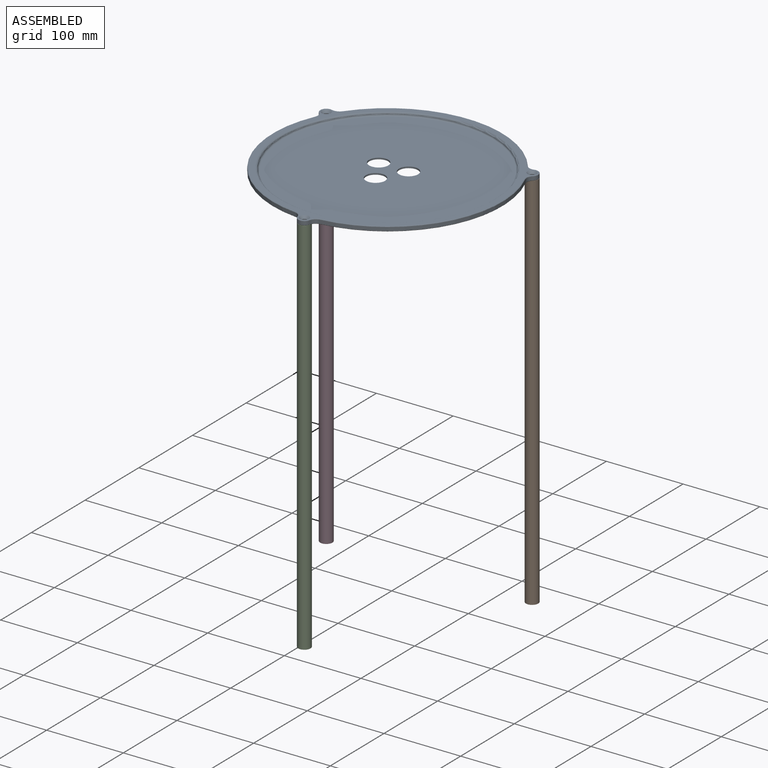
[diagram: assembled view]
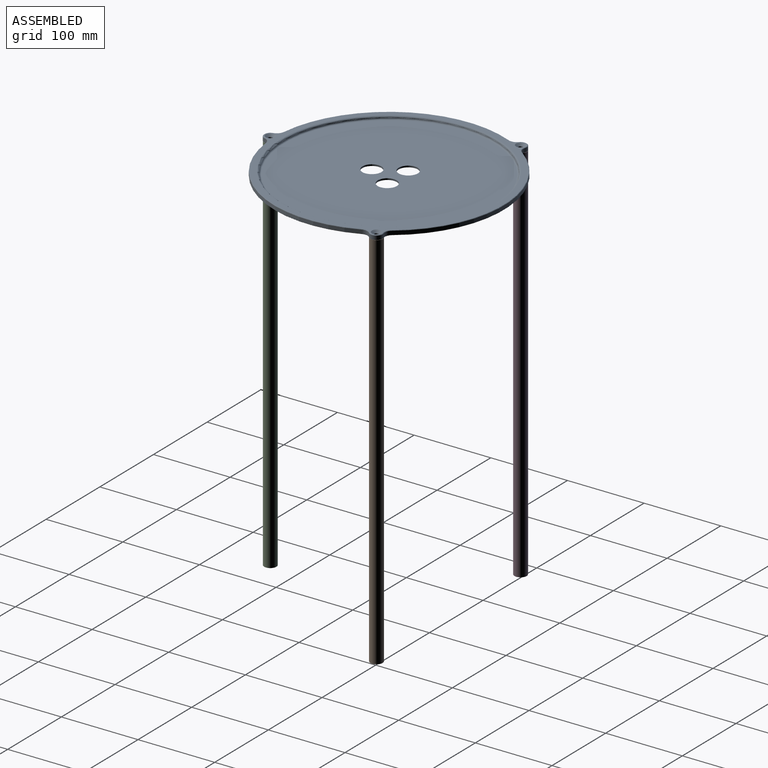
[diagram: assembled view, second angle]
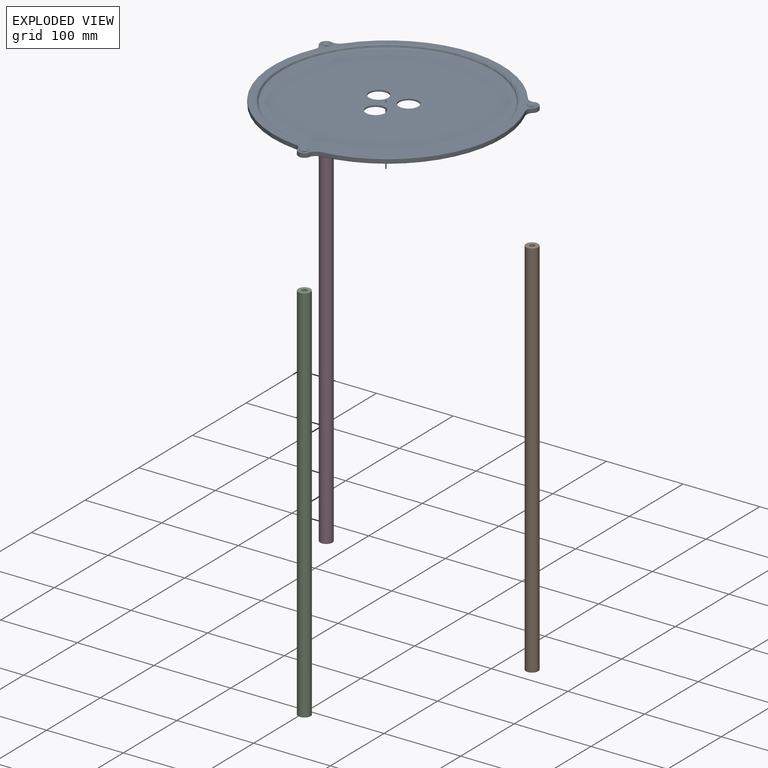
[diagram: exploded view]
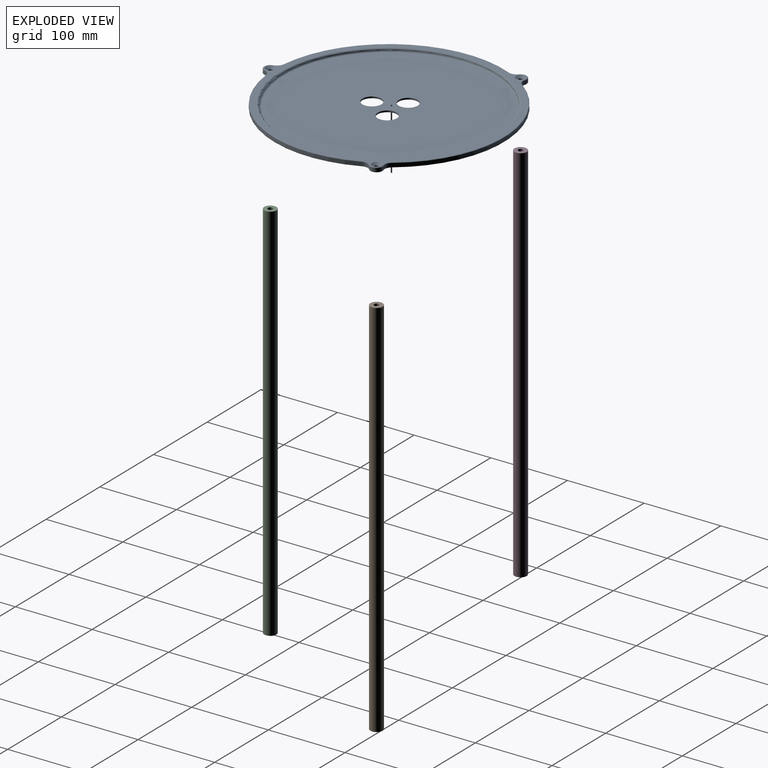
[diagram: exploded view, second angle]
ASSEMBLY  parts=4 mates=6
PART A: 50 faces, bbox 305x315.6x6 mm
  f0: cylinder r=12.5mm len=25mm, axis (0,0,-1), area 157.1mm2, adj f10,f23
  f1: cylinder r=12.5mm len=25mm, axis (0,0,-1), area 157.1mm2, adj f10,f23
  f2: cylinder r=12.5mm len=25mm, axis (0,0,-1), area 157.1mm2, adj f10,f23
  f3: cylinder r=10mm len=11.01mm, axis (0,0,-1), area 61.8mm2, adj f4,f8,f35,f39
  f4: cylinder r=8.1mm len=14.04mm, axis (0,0,-1), area 109.1mm2, adj f3,f5,f37,f41
  f5: cylinder r=10mm len=11.35mm, axis (0,0,-1), area 61.8mm2, adj f4,f6,f36,f43
  f6: cylinder r=150mm len=209.3mm, axis (0,0,-1), area 1405mm2, adj f5,f18,f34,f45
  f7: cylinder r=3.1mm len=6.2mm, axis (0,0,-1), area 58.4mm2, adj f10,f11
  f8: cylinder r=150mm len=241.68mm, axis (0,0,-1), area 1405mm2, adj f3,f14,f33,f38
  f9: plane 312.1x299mm, normal (0,0,1), area 8115.2mm2, adj f11,f17,f22,f25,f38,f39,f40,f41
  f10: plane 312.1x299mm, normal (0,0,-1), area 69272.2mm2, adj f0,f1,f2,f7,f15,f21,f26,f27
  f11: cone r=3.1mm half-angle=45deg, axis (0,0,1), area 122.6mm2, adj f7,f9
  f12: cylinder r=10mm len=11.35mm, axis (0,0,-1), area 61.8mm2, adj f13,f16,f27,f44
  f13: cylinder r=8.1mm len=14.04mm, axis (0,0,-1), area 109.1mm2, adj f12,f14,f29,f42
  f14: cylinder r=10mm len=11.01mm, axis (0,0,-1), area 61.8mm2, adj f8,f13,f31,f40
  f15: cylinder r=3.1mm len=6.2mm, axis (0,0,-1), area 58.4mm2, adj f10,f17
  f16: cylinder r=150mm len=209.3mm, axis (0,0,-1), area 1405mm2, adj f12,f20,f26,f46
  f17: cone r=3.1mm half-angle=45deg, axis (0,0,1), area 122.6mm2, adj f9,f15
  f18: cylinder r=10mm len=8.65mm, axis (0,0,-1), area 61.8mm2, adj f6,f19,f32,f47
  f19: cylinder r=8.1mm len=15.79mm, axis (0,0,-1), area 109.1mm2, adj f18,f20,f30,f49
  f20: cylinder r=10mm len=8.65mm, axis (0,0,-1), area 61.8mm2, adj f16,f19,f28,f48
  f21: cylinder r=3.1mm len=6.2mm, axis (0,0,-1), area 58.4mm2, adj f10,f22
  f22: cone r=3.1mm half-angle=45deg, axis (0,0,1), area 122.6mm2, adj f9,f21
  f23: plane 273.8x273.8mm, normal (0,0,1), area 57405.9mm2, adj f0,f1,f2,f24
  f24: torus R=136.9mm, axis (0,0,1), area 2727.4mm2, adj f23,f25
  f25: torus R=140.9mm, axis (0,0,1), area 2756.1mm2, adj f9,f24
  f26: cone r=150mm half-angle=45deg, axis (0,0,1), area 198.4mm2, adj f10,f16,f27,f28
  f27: cone r=10.5mm half-angle=45deg, axis (0,0,-1), area 9mm2, adj f10,f12,f26,f29
  f28: cone r=10.5mm half-angle=45deg, axis (0,0,-1), area 9mm2, adj f10,f20,f26,f30
  f29: cone r=8.1mm half-angle=45deg, axis (0,0,1), area 14.9mm2, adj f10,f13,f27,f31
  f30: cone r=8.1mm half-angle=45deg, axis (0,0,1), area 14.9mm2, adj f10,f19,f28,f32
  f31: cone r=10.5mm half-angle=45deg, axis (0,0,-1), area 9mm2, adj f10,f14,f29,f33
  f32: cone r=10.5mm half-angle=45deg, axis (0,0,-1), area 9mm2, adj f10,f18,f30,f34
  f33: cone r=150mm half-angle=45deg, axis (0,0,1), area 198.4mm2, adj f8,f10,f31,f35
  f34: cone r=150mm half-angle=45deg, axis (0,0,1), area 198.4mm2, adj f6,f10,f32,f36
  f35: cone r=10.5mm half-angle=45deg, axis (0,0,-1), area 9mm2, adj f3,f10,f33,f37
  f36: cone r=10.5mm half-angle=45deg, axis (0,0,-1), area 9mm2, adj f5,f10,f34,f37
  f37: cone r=8.1mm half-angle=45deg, axis (0,0,1), area 14.9mm2, adj f4,f10,f35,f36
  f38: cone r=149.5mm half-angle=45deg, axis (0,0,-1), area 198.4mm2, adj f8,f9,f39,f40
  f39: cone r=10mm half-angle=45deg, axis (0,0,1), area 9mm2, adj f3,f9,f38,f41
  f40: cone r=10mm half-angle=45deg, axis (0,0,1), area 9mm2, adj f9,f14,f38,f42
  f41: cone r=7.6mm half-angle=45deg, axis (0,0,-1), area 14.9mm2, adj f4,f9,f39,f43
  f42: cone r=7.6mm half-angle=45deg, axis (0,0,-1), area 14.9mm2, adj f9,f13,f40,f44
  f43: cone r=10mm half-angle=45deg, axis (0,0,1), area 9mm2, adj f5,f9,f41,f45
  f44: cone r=10mm half-angle=45deg, axis (0,0,1), area 9mm2, adj f9,f12,f42,f46
  f45: cone r=149.5mm half-angle=45deg, axis (0,0,-1), area 198.4mm2, adj f6,f9,f43,f47
  f46: cone r=149.5mm half-angle=45deg, axis (0,0,-1), area 198.4mm2, adj f9,f16,f44,f48
  f47: cone r=10mm half-angle=45deg, axis (0,0,1), area 9mm2, adj f9,f18,f45,f49
  f48: cone r=10mm half-angle=45deg, axis (0,0,1), area 9mm2, adj f9,f20,f46,f49
  f49: cone r=7.6mm half-angle=45deg, axis (0,0,-1), area 14.9mm2, adj f9,f19,f47,f48
PART B: 5 faces, bbox 16x16x500 mm
  f0: plane 16x16mm, normal (0,0,-1), area 201.1mm2, adj f2
  f1: plane 16x16mm, normal (0,0,1), area 166.8mm2, adj f2,f4
  f2: cylinder r=8mm len=500mm, axis (0,0,-1), area 25132.7mm2, adj f0,f1
  f3: cone r=0mm half-angle=59deg, axis (0,0,1), area 39.9mm2, adj f4
  f4: cylinder r=3.3mm len=30mm, axis (0,0,1), area 622mm2, adj f1,f3
PART C: same geometry as B
PART D: same geometry as B
PLACE A t=(115.05,-71.9,288.79)mm
PLACE B t=(249.28,5.6,-214.21)mm
PLACE C t=(115.05,-226.9,-214.21)mm
PLACE D t=(-19.19,5.6,-214.21)mm
MATE planar A.f8 <-> B.f2  axis (0,0,-1) through (115.05,-71.9,285.79)mm
MATE cylindrical C.f2 <-> A.f21  axis (0,0,-1) through (115.05,-226.9,285.79)mm
MATE cylindrical B.f2 <-> A.f13  axis (0,0,-1) through (249.28,5.6,35.79)mm
MATE cylindrical D.f2 <-> A.f4  axis (0,0,-1) through (-19.19,5.6,35.79)mm
MATE planar A.f10 <-> D.f2  axis (0,0,-1) through (-21.88,-11.88,285.79)mm
MATE planar A.f8 <-> C.f2  axis (0,0,-1) through (115.05,-71.9,285.79)mm
